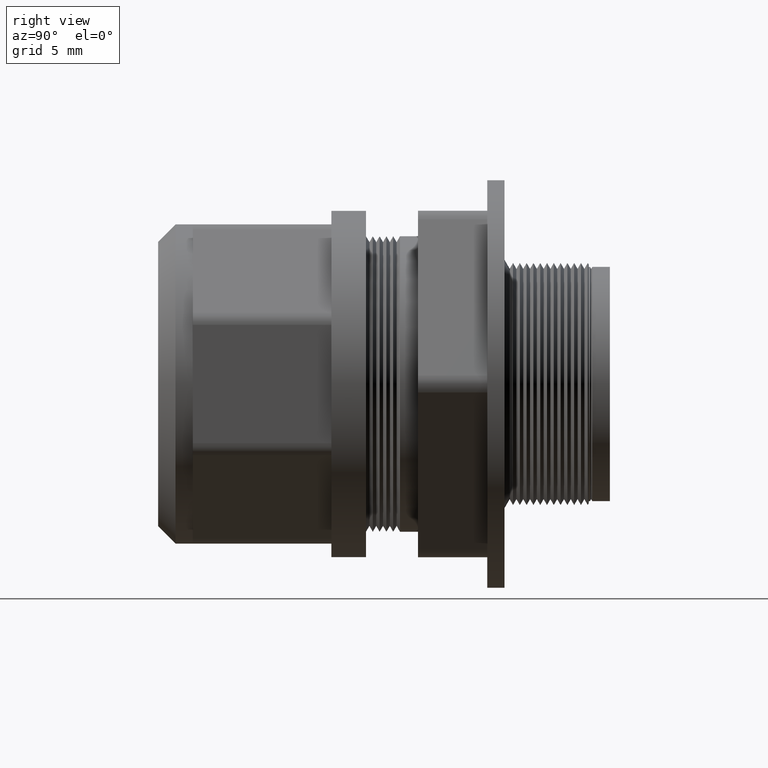
[diagram: clean part render]
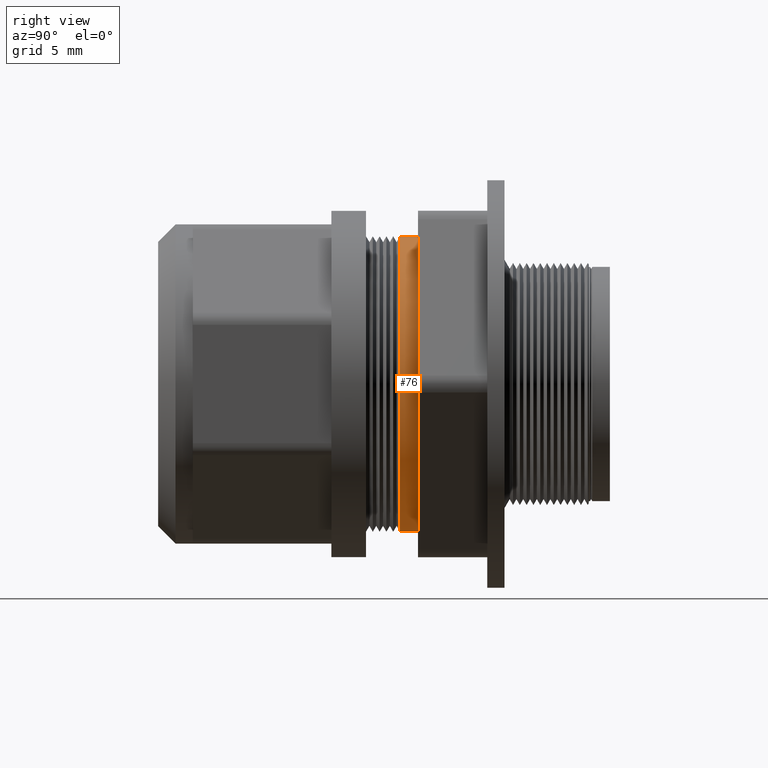
[diagram: same view with one face highlighted and labeled with its STEP entity id]
A machine part, right view. The second image highlights one B-rep face of the part: STEP entity #76.
In plain terms, the highlighted cylindrical surface (partial cylindrical patch) has radius 11.049 mm, axis along (0, 1, 0).
Its self-contained STEP definition (entity closure, byte-faithful):
#44 = ORIENTED_EDGE ( 'NONE', *, *, #73, .F. ) ;
#45 = EDGE_LOOP ( 'NONE', ( #81, #77, #44, #71 ) ) ;
#69 = VERTEX_POINT ( 'NONE', #1477 ) ;
#70 = EDGE_CURVE ( 'NONE', #372, #69, #1476, .T. ) ;
#71 = ORIENTED_EDGE ( 'NONE', *, *, #70, .F. ) ;
#73 = EDGE_CURVE ( 'NONE', #69, #80, #1471, .T. ) ;
#76 = ADVANCED_FACE ( 'NONE', ( #1461 ), #1498, .T. ) ;
#77 = ORIENTED_EDGE ( 'NONE', *, *, #78, .T. ) ;
#78 = EDGE_CURVE ( 'NONE', #379, #80, #1499, .T. ) ;
#80 = VERTEX_POINT ( 'NONE', #1491 ) ;
#81 = ORIENTED_EDGE ( 'NONE', *, *, #373, .T. ) ;
#372 = VERTEX_POINT ( 'NONE', #2490 ) ;
#373 = EDGE_CURVE ( 'NONE', #372, #379, #2489, .T. ) ;
#379 = VERTEX_POINT ( 'NONE', #2480 ) ;
#1461 = FACE_OUTER_BOUND ( 'NONE', #45, .T. ) ;
#1467 = DIRECTION ( 'NONE',  ( 0.0000000000000000000, 0.0000000000000000000, 1.000000000000000000 ) ) ;
#1468 = DIRECTION ( 'NONE',  ( 0.0000000000000000000, 1.000000000000000000, 0.0000000000000000000 ) ) ;
#1469 = CARTESIAN_POINT ( 'NONE',  ( 0.0000000000000000000, 0.7650000000000000100, 0.0000000000000000000 ) ) ;
#1470 = AXIS2_PLACEMENT_3D ( 'NONE', #1469, #1468, #1467 ) ;
#1471 = CIRCLE ( 'NONE', #1470, 0.4349999999999998900 ) ;
#1473 = DIRECTION ( 'NONE',  ( 0.0000000000000000000, 1.000000000000000000, 0.0000000000000000000 ) ) ;
#1474 = VECTOR ( 'NONE', #1473, 39.37007874015748100 ) ;
#1475 = CARTESIAN_POINT ( 'NONE',  ( 0.0000000000000000000, 1.843561561718224600, 0.4349999999999998900 ) ) ;
#1476 = LINE ( 'NONE', #1475, #1474 ) ;
#1477 = CARTESIAN_POINT ( 'NONE',  ( 0.0000000000000000000, 0.7650000000000000100, 0.4349999999999998900 ) ) ;
#1491 = CARTESIAN_POINT ( 'NONE',  ( 5.327213576290984500E-017, 0.7650000000000000100, -0.4349999999999998900 ) ) ;
#1492 = DIRECTION ( 'NONE',  ( 0.0000000000000000000, 1.000000000000000000, 0.0000000000000000000 ) ) ;
#1493 = VECTOR ( 'NONE', #1492, 39.37007874015748100 ) ;
#1494 = CARTESIAN_POINT ( 'NONE',  ( 5.327213576290984500E-017, 1.843561561718224600, -0.4349999999999998900 ) ) ;
#1495 = DIRECTION ( 'NONE',  ( 0.0000000000000000000, 0.0000000000000000000, 1.000000000000000000 ) ) ;
#1496 = DIRECTION ( 'NONE',  ( 0.0000000000000000000, 1.000000000000000000, 0.0000000000000000000 ) ) ;
#1497 = AXIS2_PLACEMENT_3D ( 'NONE', #1500, #1496, #1495 ) ;
#1498 = CYLINDRICAL_SURFACE ( 'NONE', #1497, 0.4349999999999998900 ) ;
#1499 = LINE ( 'NONE', #1494, #1493 ) ;
#1500 = CARTESIAN_POINT ( 'NONE',  ( 0.0000000000000000000, 1.843561561718224600, 0.0000000000000000000 ) ) ;
#2480 = CARTESIAN_POINT ( 'NONE',  ( 5.327213576290986400E-017, 0.7119999999999999700, -0.4349999999999999400 ) ) ;
#2485 = DIRECTION ( 'NONE',  ( 0.0000000000000000000, 0.0000000000000000000, 1.000000000000000000 ) ) ;
#2486 = DIRECTION ( 'NONE',  ( 0.0000000000000000000, 1.000000000000000000, 0.0000000000000000000 ) ) ;
#2487 = CARTESIAN_POINT ( 'NONE',  ( 0.0000000000000000000, 0.7119999999999999700, 0.0000000000000000000 ) ) ;
#2488 = AXIS2_PLACEMENT_3D ( 'NONE', #2487, #2486, #2485 ) ;
#2489 = CIRCLE ( 'NONE', #2488, 0.4350000000000000000 ) ;
#2490 = CARTESIAN_POINT ( 'NONE',  ( 0.0000000000000000000, 0.7119999999999999700, 0.4350000000000000000 ) ) ;